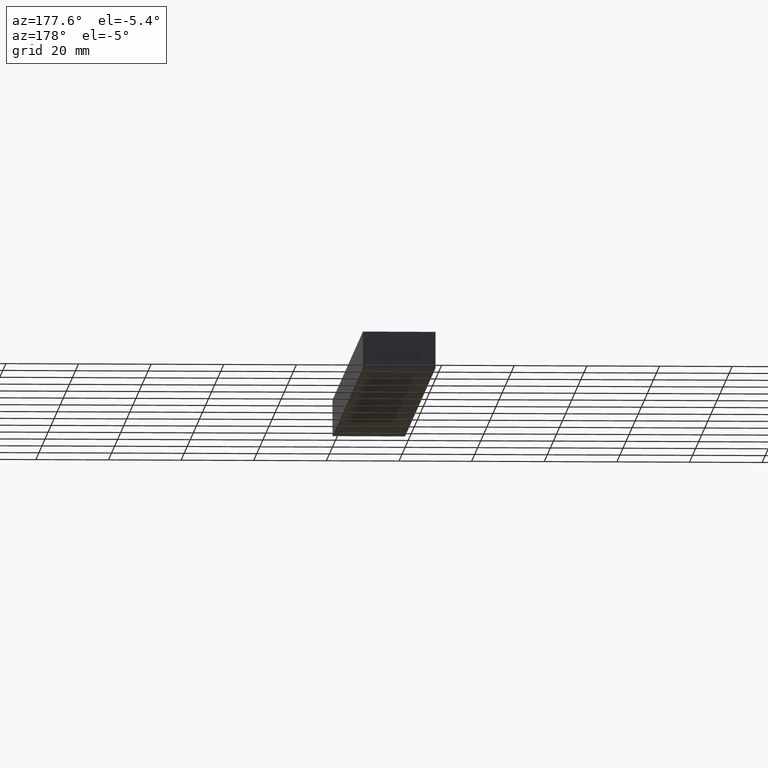
[diagram: clean part render]
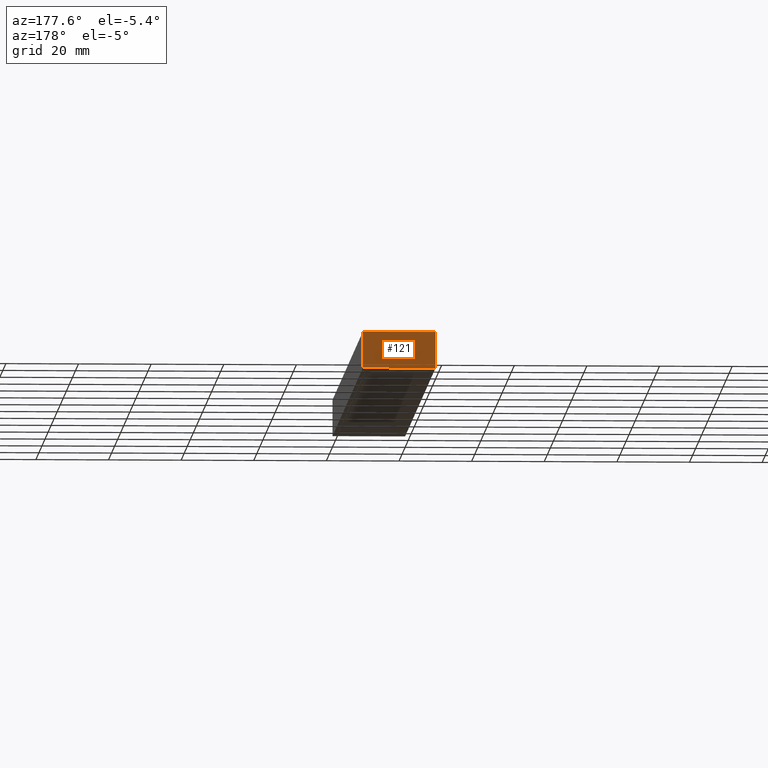
[diagram: same view with one face highlighted and labeled with its STEP entity id]
A machine part, auxiliary view. The second image highlights one B-rep face of the part: STEP entity #121.
In plain terms, the highlighted planar face has unit normal (0, 1, 0).
Its self-contained STEP definition (entity closure, byte-faithful):
#10 = CARTESIAN_POINT ( 'NONE',  ( 0.0000000000000000000, 200.0000000000000000, 0.0000000000000000000 ) ) ;
#11 = DIRECTION ( 'NONE',  ( 1.000000000000000000, -0.0000000000000000000, -0.0000000000000000000 ) ) ;
#19 = VECTOR ( 'NONE', #11, 1000.000000000000000 ) ;
#31 = ORIENTED_EDGE ( 'NONE', *, *, #218, .F. ) ;
#32 = DIRECTION ( 'NONE',  ( -0.0000000000000000000, -0.0000000000000000000, 1.000000000000000000 ) ) ;
#33 = CARTESIAN_POINT ( 'NONE',  ( 0.0000000000000000000, 200.0000000000000000, 0.0000000000000000000 ) ) ;
#34 = CARTESIAN_POINT ( 'NONE',  ( 20.00000000000000000, 200.0000000000000000, 0.0000000000000000000 ) ) ;
#38 = CARTESIAN_POINT ( 'NONE',  ( 0.0000000000000000000, 200.0000000000000000, 0.0000000000000000000 ) ) ;
#44 = VERTEX_POINT ( 'NONE', #70 ) ;
#53 = VECTOR ( 'NONE', #105, 1000.000000000000000 ) ;
#66 = ORIENTED_EDGE ( 'NONE', *, *, #162, .F. ) ;
#70 = CARTESIAN_POINT ( 'NONE',  ( 0.0000000000000000000, 200.0000000000000000, 10.00000000000000000 ) ) ;
#83 = EDGE_CURVE ( 'NONE', #88, #216, #178, .T. ) ;
#88 = VERTEX_POINT ( 'NONE', #34 ) ;
#94 = CARTESIAN_POINT ( 'NONE',  ( 20.00000000000000000, 200.0000000000000000, 0.0000000000000000000 ) ) ;
#102 = LINE ( 'NONE', #10, #209 ) ;
#105 = DIRECTION ( 'NONE',  ( -1.000000000000000000, -0.0000000000000000000, -0.0000000000000000000 ) ) ;
#106 = VERTEX_POINT ( 'NONE', #166 ) ;
#112 = CARTESIAN_POINT ( 'NONE',  ( 0.0000000000000000000, 200.0000000000000000, 10.00000000000000000 ) ) ;
#113 = ORIENTED_EDGE ( 'NONE', *, *, #83, .F. ) ;
#114 = FACE_OUTER_BOUND ( 'NONE', #205, .T. ) ;
#120 = ORIENTED_EDGE ( 'NONE', *, *, #215, .F. ) ;
#121 = ADVANCED_FACE ( 'NONE', ( #114 ), #201, .T. ) ;
#122 = LINE ( 'NONE', #112, #53 ) ;
#126 = DIRECTION ( 'NONE',  ( 1.000000000000000000, 0.0000000000000000000, 0.0000000000000000000 ) ) ;
#162 = EDGE_CURVE ( 'NONE', #216, #44, #122, .T. ) ;
#164 = DIRECTION ( 'NONE',  ( -0.0000000000000000000, 1.000000000000000000, 0.0000000000000000000 ) ) ;
#166 = CARTESIAN_POINT ( 'NONE',  ( 0.0000000000000000000, 200.0000000000000000, 0.0000000000000000000 ) ) ;
#178 = LINE ( 'NONE', #94, #182 ) ;
#182 = VECTOR ( 'NONE', #32, 1000.000000000000000 ) ;
#187 = CARTESIAN_POINT ( 'NONE',  ( 20.00000000000000000, 200.0000000000000000, 10.00000000000000000 ) ) ;
#201 = PLANE ( 'NONE',  #214 ) ;
#205 = EDGE_LOOP ( 'NONE', ( #31, #120, #66, #113 ) ) ;
#209 = VECTOR ( 'NONE', #229, 1000.000000000000000 ) ;
#211 = LINE ( 'NONE', #33, #19 ) ;
#214 = AXIS2_PLACEMENT_3D ( 'NONE', #38, #164, #126 ) ;
#215 = EDGE_CURVE ( 'NONE', #44, #106, #102, .T. ) ;
#216 = VERTEX_POINT ( 'NONE', #187 ) ;
#218 = EDGE_CURVE ( 'NONE', #106, #88, #211, .T. ) ;
#229 = DIRECTION ( 'NONE',  ( -0.0000000000000000000, -0.0000000000000000000, -1.000000000000000000 ) ) ;